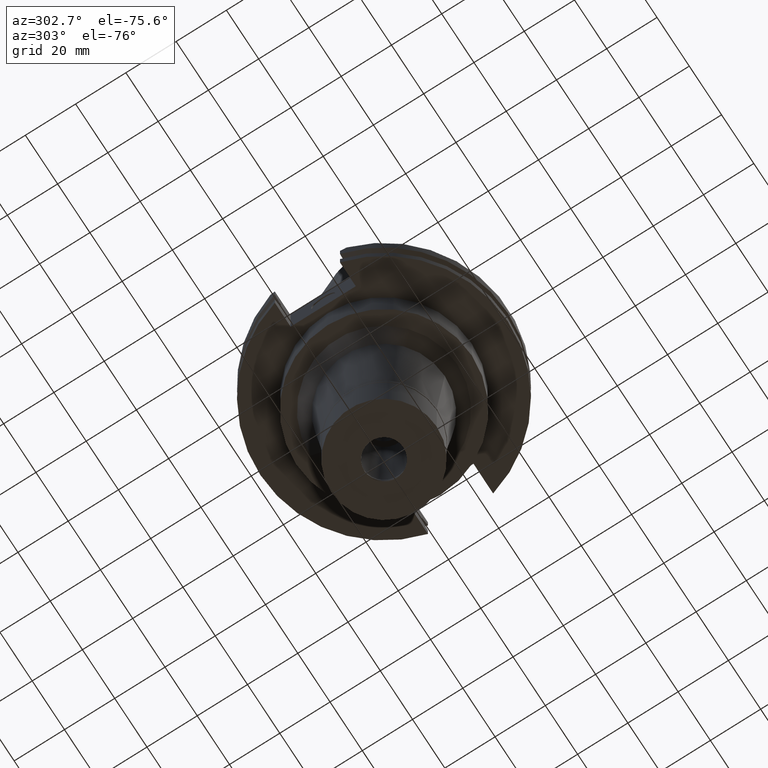
[diagram: clean part render]
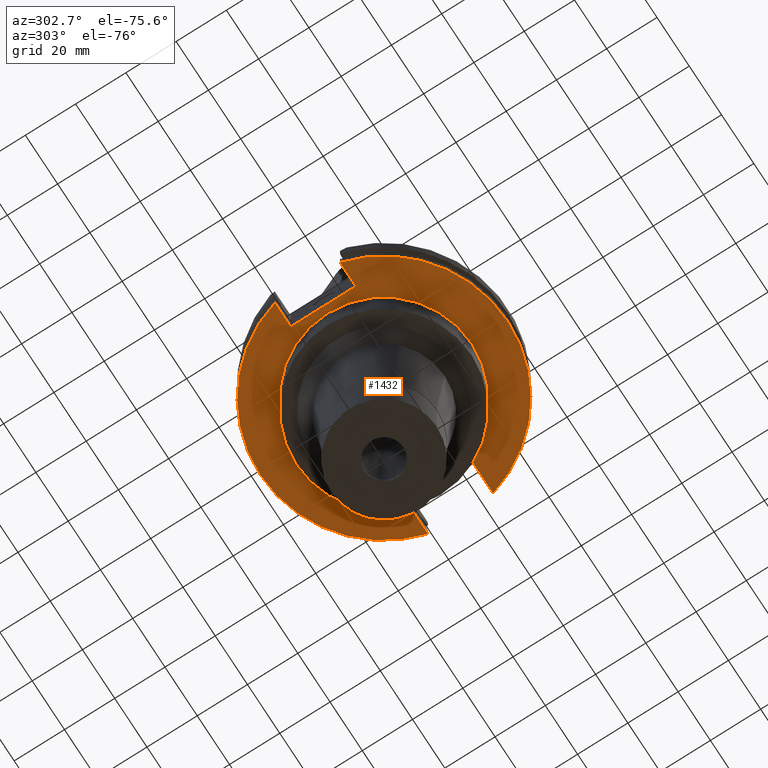
[diagram: same view with one face highlighted and labeled with its STEP entity id]
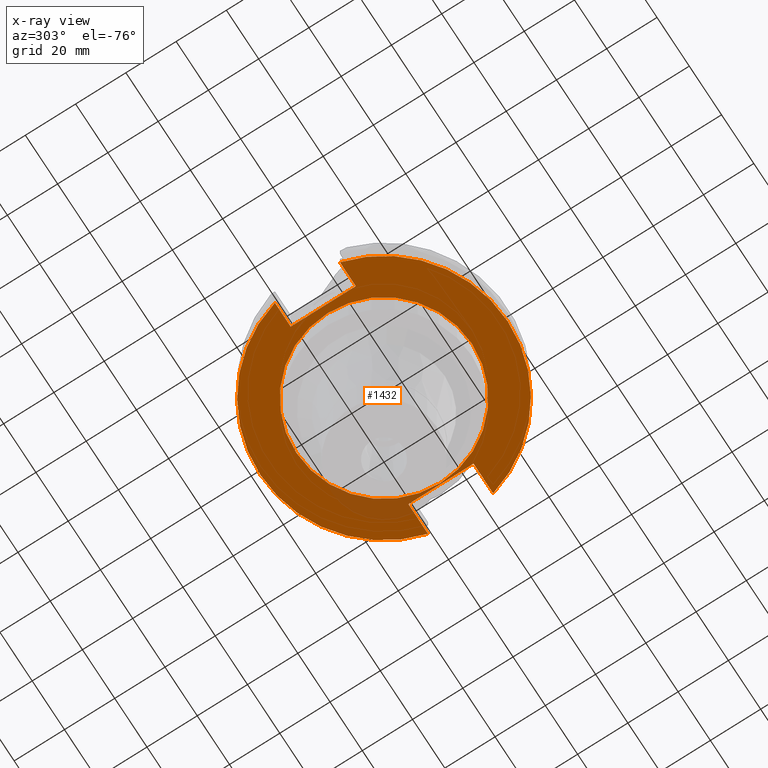
[diagram: x-ray of the same camera — body ghosted, the highlighted face saturated]
A machine part, auxiliary view. The second image highlights one B-rep face of the part: STEP entity #1432.
The next image is the same camera in x-ray: the body ghosted, the highlighted face saturated — about 6% of this face is hidden behind the body in this view.
In plain terms, the highlighted planar face has unit normal (0, 0, -1).
Its self-contained STEP definition (entity closure, byte-faithful):
#4 = VECTOR ( 'NONE', #2911, 1000.000000000000000 ) ;
#24 = ORIENTED_EDGE ( 'NONE', *, *, #1355, .T. ) ;
#143 = ORIENTED_EDGE ( 'NONE', *, *, #1059, .T. ) ;
#166 = FACE_OUTER_BOUND ( 'NONE', #1382, .T. ) ;
#178 = DIRECTION ( 'NONE',  ( 1.000000000000000000, 1.455229645530999953E-14, 0.0000000000000000000 ) ) ;
#205 = CARTESIAN_POINT ( 'NONE',  ( 0.0000000000000000000, 2.588719636377999795E-14, -19.05000000000000071 ) ) ;
#208 = DIRECTION ( 'NONE',  ( 0.0000000000000000000, 1.000000000000000000, 0.0000000000000000000 ) ) ;
#275 = CARTESIAN_POINT ( 'NONE',  ( 0.0000000000000000000, 34.92499999999999716, -19.05000000000000071 ) ) ;
#328 = EDGE_CURVE ( 'NONE', #1566, #2602, #1814, .T. ) ;
#403 = CARTESIAN_POINT ( 'NONE',  ( -37.67999999999999972, 12.95500000000000007, -19.05000000000000071 ) ) ;
#450 = DIRECTION ( 'NONE',  ( 0.0000000000000000000, 0.0000000000000000000, -1.000000000000000000 ) ) ;
#476 = LINE ( 'NONE', #2517, #2404 ) ;
#479 = CARTESIAN_POINT ( 'NONE',  ( -37.67999999999999972, -12.95500000000000007, -19.05000000000000071 ) ) ;
#495 = CARTESIAN_POINT ( 'NONE',  ( 0.0000000000000000000, 2.588719636377999795E-14, -19.05000000000000071 ) ) ;
#509 = DIRECTION ( 'NONE',  ( 0.0000000000000000000, 0.0000000000000000000, -1.000000000000000000 ) ) ;
#561 = VERTEX_POINT ( 'NONE', #275 ) ;
#565 = DIRECTION ( 'NONE',  ( 0.0000000000000000000, -1.000000000000000000, 0.0000000000000000000 ) ) ;
#566 = VERTEX_POINT ( 'NONE', #2362 ) ;
#568 = CARTESIAN_POINT ( 'NONE',  ( 35.27000000000000313, 12.95500000000000007, -19.05000000000000071 ) ) ;
#573 = VERTEX_POINT ( 'NONE', #1407 ) ;
#611 = VECTOR ( 'NONE', #2050, 1000.000000000000000 ) ;
#618 = EDGE_LOOP ( 'NONE', ( #1096, #2969 ) ) ;
#723 = CARTESIAN_POINT ( 'NONE',  ( 47.47671146204000081, -12.95500000000000007, -19.05000000000000071 ) ) ;
#789 = CARTESIAN_POINT ( 'NONE',  ( -47.47671146204000081, 12.95500000000000007, -19.05000000000000071 ) ) ;
#847 = EDGE_CURVE ( 'NONE', #573, #566, #476, .T. ) ;
#864 = DIRECTION ( 'NONE',  ( -1.000000000000000000, -1.795085297572000011E-14, 0.0000000000000000000 ) ) ;
#865 = AXIS2_PLACEMENT_3D ( 'NONE', #2214, #1620, #1955 ) ;
#957 = VERTEX_POINT ( 'NONE', #723 ) ;
#995 = CIRCLE ( 'NONE', #1536, 34.92499999999999716 ) ;
#1014 = ORIENTED_EDGE ( 'NONE', *, *, #2541, .F. ) ;
#1040 = AXIS2_PLACEMENT_3D ( 'NONE', #2642, #509, #565 ) ;
#1059 = EDGE_CURVE ( 'NONE', #573, #3140, #1623, .T. ) ;
#1060 = VERTEX_POINT ( 'NONE', #789 ) ;
#1096 = ORIENTED_EDGE ( 'NONE', *, *, #2085, .F. ) ;
#1143 = AXIS2_PLACEMENT_3D ( 'NONE', #2925, #1642, #3265 ) ;
#1177 = FACE_BOUND ( 'NONE', #618, .T. ) ;
#1217 = ORIENTED_EDGE ( 'NONE', *, *, #1278, .T. ) ;
#1218 = ORIENTED_EDGE ( 'NONE', *, *, #1288, .F. ) ;
#1278 = EDGE_CURVE ( 'NONE', #3140, #957, #2482, .T. ) ;
#1288 = EDGE_CURVE ( 'NONE', #566, #1060, #2664, .T. ) ;
#1355 = EDGE_CURVE ( 'NONE', #2602, #1060, #2250, .T. ) ;
#1382 = EDGE_LOOP ( 'NONE', ( #1217, #1014, #2440, #2008, #24, #1218, #3023, #143 ) ) ;
#1407 = CARTESIAN_POINT ( 'NONE',  ( 35.27000000000000313, 12.95500000000000007, -19.05000000000000071 ) ) ;
#1432 = ADVANCED_FACE ( 'NONE', ( #166, #1177 ), #3244, .T. ) ;
#1457 = CARTESIAN_POINT ( 'NONE',  ( -37.67999999999999972, 12.95500000000000007, -19.05000000000000071 ) ) ;
#1465 = CARTESIAN_POINT ( 'NONE',  ( -47.47671146204000081, -12.95500000000000007, -19.05000000000000071 ) ) ;
#1536 = AXIS2_PLACEMENT_3D ( 'NONE', #495, #450, #208 ) ;
#1566 = VERTEX_POINT ( 'NONE', #2807 ) ;
#1620 = DIRECTION ( 'NONE',  ( 0.0000000000000000000, 0.0000000000000000000, -1.000000000000000000 ) ) ;
#1623 = LINE ( 'NONE', #568, #4 ) ;
#1633 = VECTOR ( 'NONE', #1994, 1000.000000000000000 ) ;
#1642 = DIRECTION ( 'NONE',  ( 0.0000000000000000000, 0.0000000000000000000, 1.000000000000000000 ) ) ;
#1814 = LINE ( 'NONE', #479, #611 ) ;
#1893 = CARTESIAN_POINT ( 'NONE',  ( 35.27000000000000313, -12.95500000000000007, -19.05000000000000071 ) ) ;
#1955 = DIRECTION ( 'NONE',  ( 0.0000000000000000000, -1.000000000000000000, 0.0000000000000000000 ) ) ;
#1978 = VECTOR ( 'NONE', #864, 1000.000000000000000 ) ;
#1994 = DIRECTION ( 'NONE',  ( -1.000000000000000000, 1.813217472294999948E-14, 0.0000000000000000000 ) ) ;
#2008 = ORIENTED_EDGE ( 'NONE', *, *, #328, .T. ) ;
#2050 = DIRECTION ( 'NONE',  ( 0.0000000000000000000, 1.000000000000000000, 0.0000000000000000000 ) ) ;
#2085 = EDGE_CURVE ( 'NONE', #561, #2257, #995, .T. ) ;
#2136 = CIRCLE ( 'NONE', #2784, 49.21249999999999858 ) ;
#2214 = CARTESIAN_POINT ( 'NONE',  ( 0.0000000000000000000, 0.0000000000000000000, -19.05000000000000071 ) ) ;
#2250 = LINE ( 'NONE', #403, #1633 ) ;
#2257 = VERTEX_POINT ( 'NONE', #3092 ) ;
#2362 = CARTESIAN_POINT ( 'NONE',  ( 47.47671146204000081, 12.95500000000000007, -19.05000000000000071 ) ) ;
#2404 = VECTOR ( 'NONE', #178, 1000.000000000000000 ) ;
#2426 = CARTESIAN_POINT ( 'NONE',  ( -37.67999999999999972, -12.95500000000000007, -19.05000000000000071 ) ) ;
#2440 = ORIENTED_EDGE ( 'NONE', *, *, #2963, .F. ) ;
#2470 = CIRCLE ( 'NONE', #1040, 34.92499999999999716 ) ;
#2482 = LINE ( 'NONE', #1893, #3032 ) ;
#2517 = CARTESIAN_POINT ( 'NONE',  ( 35.27000000000000313, 12.95500000000000007, -19.05000000000000071 ) ) ;
#2541 = EDGE_CURVE ( 'NONE', #3194, #957, #2136, .T. ) ;
#2559 = DIRECTION ( 'NONE',  ( 0.0000000000000000000, 0.0000000000000000000, 1.000000000000000000 ) ) ;
#2602 = VERTEX_POINT ( 'NONE', #1457 ) ;
#2642 = CARTESIAN_POINT ( 'NONE',  ( 0.0000000000000000000, 2.588719636377999795E-14, -19.05000000000000071 ) ) ;
#2664 = CIRCLE ( 'NONE', #1143, 49.21249999999999858 ) ;
#2676 = LINE ( 'NONE', #2426, #1978 ) ;
#2768 = EDGE_CURVE ( 'NONE', #2257, #561, #2470, .T. ) ;
#2784 = AXIS2_PLACEMENT_3D ( 'NONE', #205, #2559, #3071 ) ;
#2807 = CARTESIAN_POINT ( 'NONE',  ( -37.67999999999999972, -12.95500000000000007, -19.05000000000000071 ) ) ;
#2911 = DIRECTION ( 'NONE',  ( 0.0000000000000000000, -1.000000000000000000, 0.0000000000000000000 ) ) ;
#2925 = CARTESIAN_POINT ( 'NONE',  ( 0.0000000000000000000, 2.588719636377999795E-14, -19.05000000000000071 ) ) ;
#2963 = EDGE_CURVE ( 'NONE', #1566, #3194, #2676, .T. ) ;
#2969 = ORIENTED_EDGE ( 'NONE', *, *, #2768, .F. ) ;
#3023 = ORIENTED_EDGE ( 'NONE', *, *, #847, .F. ) ;
#3032 = VECTOR ( 'NONE', #3249, 1000.000000000000000 ) ;
#3071 = DIRECTION ( 'NONE',  ( 0.0000000000000000000, -1.000000000000000000, 0.0000000000000000000 ) ) ;
#3092 = CARTESIAN_POINT ( 'NONE',  ( 0.0000000000000000000, -34.92499999999999716, -19.05000000000000071 ) ) ;
#3140 = VERTEX_POINT ( 'NONE', #3261 ) ;
#3194 = VERTEX_POINT ( 'NONE', #1465 ) ;
#3244 = PLANE ( 'NONE',  #865 ) ;
#3249 = DIRECTION ( 'NONE',  ( 1.000000000000000000, -1.411572756165000194E-14, 0.0000000000000000000 ) ) ;
#3261 = CARTESIAN_POINT ( 'NONE',  ( 35.27000000000000313, -12.95500000000000007, -19.05000000000000071 ) ) ;
#3265 = DIRECTION ( 'NONE',  ( 0.0000000000000000000, 1.000000000000000000, 0.0000000000000000000 ) ) ;